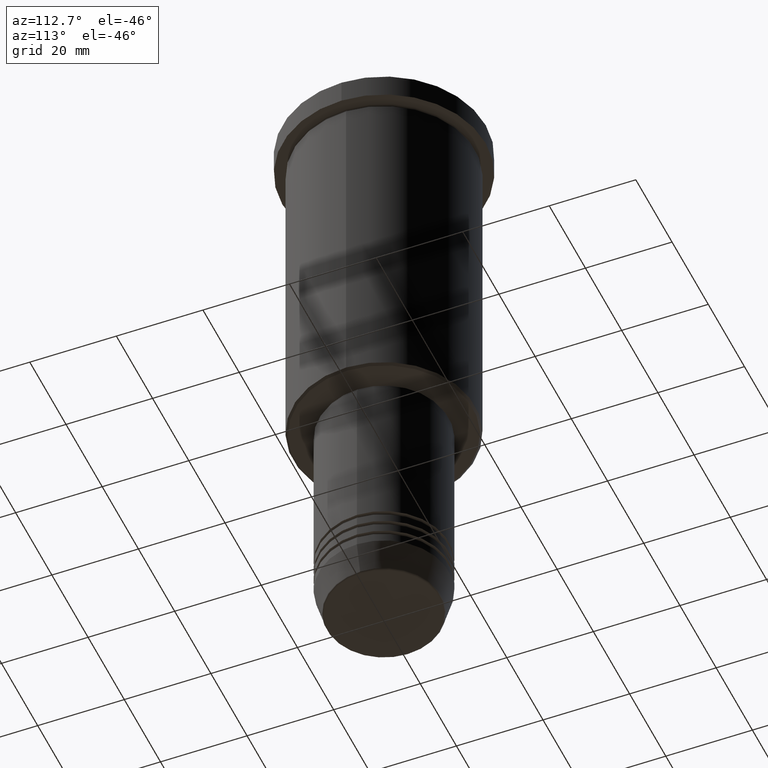
[diagram: clean part render]
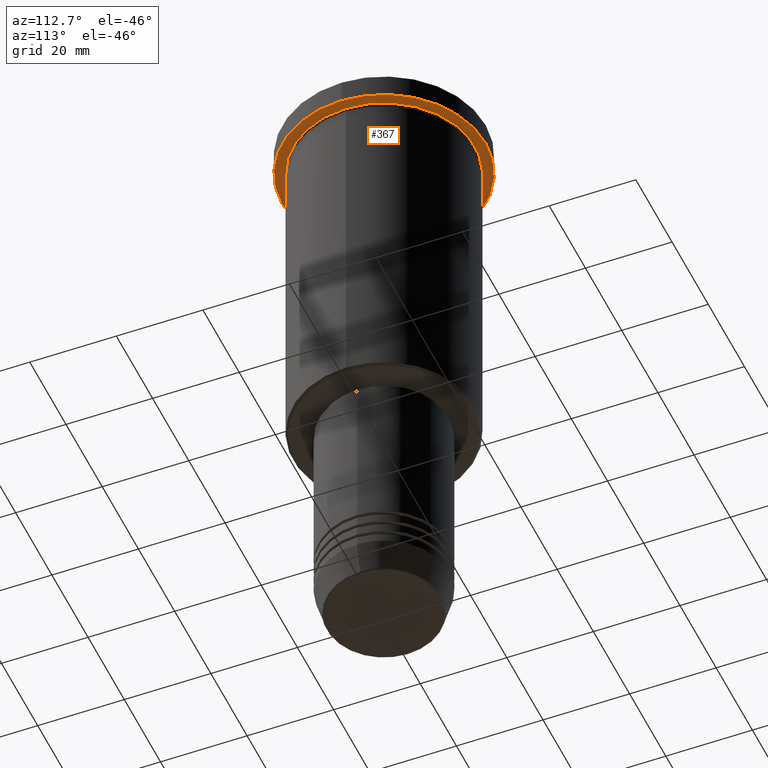
[diagram: same view with one face highlighted and labeled with its STEP entity id]
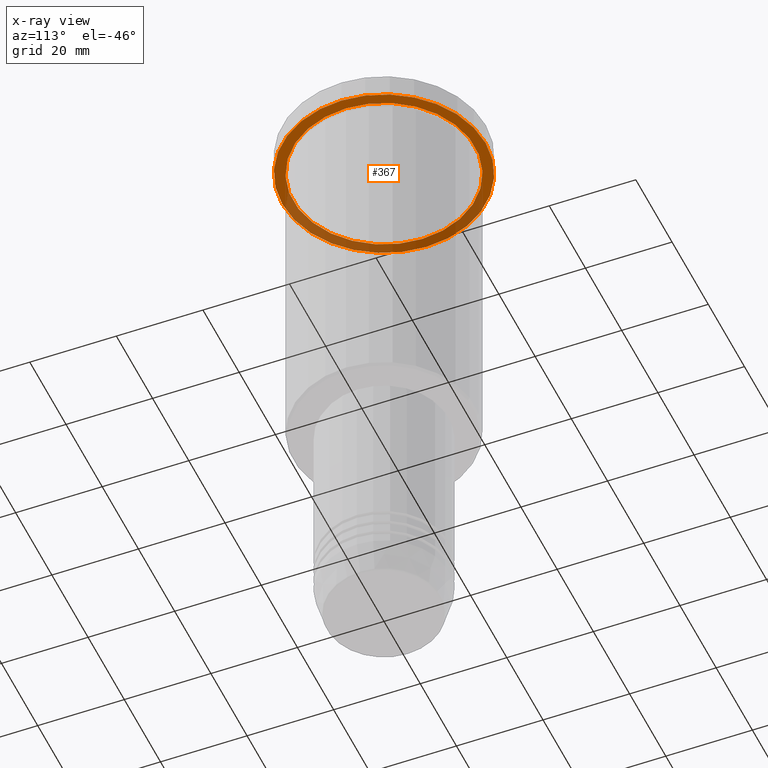
[diagram: x-ray of the same camera — body ghosted, the highlighted face saturated]
A machine part, auxiliary view. The second image highlights one B-rep face of the part: STEP entity #367.
The next image is the same camera in x-ray: the body ghosted, the highlighted face saturated — about 39% of this face is hidden behind the body in this view.
In plain terms, the highlighted planar face has unit normal (0, 0, -1).
Its self-contained STEP definition (entity closure, byte-faithful):
#27 = CARTESIAN_POINT ( 'NONE',  ( 0.000000000000000000, 0.000000000000000000, -5.999999999999994671 ) ) ;
#54 = VERTEX_POINT ( 'NONE', #271 ) ;
#61 = CIRCLE ( 'NONE', #1086, 23.50000000000000000 ) ;
#88 = DIRECTION ( 'NONE',  ( 1.000000000000000000, 0.000000000000000000, 0.000000000000000000 ) ) ;
#98 = CARTESIAN_POINT ( 'NONE',  ( 23.50000000000000000, 0.000000000000000000, -5.999999999999994671 ) ) ;
#149 = DIRECTION ( 'NONE',  ( -1.000000000000000000, 0.000000000000000000, 0.000000000000000000 ) ) ;
#228 = EDGE_CURVE ( 'NONE', #701, #983, #800, .T. ) ;
#244 = ORIENTED_EDGE ( 'NONE', *, *, #703, .F. ) ;
#271 = CARTESIAN_POINT ( 'NONE',  ( -23.50000000000000000, 2.877919977996280320E-15, -5.999999999999994671 ) ) ;
#272 = PLANE ( 'NONE',  #812 ) ;
#285 = DIRECTION ( 'NONE',  ( -0.000000000000000000, -0.000000000000000000, 1.000000000000000000 ) ) ;
#305 = FACE_BOUND ( 'NONE', #1054, .T. ) ;
#349 = DIRECTION ( 'NONE',  ( -0.000000000000000000, -0.000000000000000000, 1.000000000000000000 ) ) ;
#354 = CARTESIAN_POINT ( 'NONE',  ( -21.00000000000000000, 0.000000000000000000, -5.999999999999994671 ) ) ;
#359 = DIRECTION ( 'NONE',  ( -1.000000000000000000, 0.000000000000000000, 0.000000000000000000 ) ) ;
#367 = ADVANCED_FACE ( 'NONE', ( #305, #1089 ), #272, .T. ) ;
#395 = VERTEX_POINT ( 'NONE', #98 ) ;
#455 = AXIS2_PLACEMENT_3D ( 'NONE', #874, #1070, #359 ) ;
#480 = EDGE_LOOP ( 'NONE', ( #793, #244 ) ) ;
#486 = DIRECTION ( 'NONE',  ( -1.000000000000000000, 0.000000000000000000, -0.000000000000000000 ) ) ;
#487 = AXIS2_PLACEMENT_3D ( 'NONE', #879, #349, #88 ) ;
#536 = ORIENTED_EDGE ( 'NONE', *, *, #986, .T. ) ;
#537 = CIRCLE ( 'NONE', #455, 21.00000000000000000 ) ;
#674 = DIRECTION ( 'NONE',  ( 0.000000000000000000, 0.000000000000000000, -1.000000000000000000 ) ) ;
#701 = VERTEX_POINT ( 'NONE', #741 ) ;
#703 = EDGE_CURVE ( 'NONE', #54, #395, #61, .T. ) ;
#741 = CARTESIAN_POINT ( 'NONE',  ( 21.00000000000000000, 2.571758278209441661E-15, -5.999999999999994671 ) ) ;
#790 = ORIENTED_EDGE ( 'NONE', *, *, #228, .T. ) ;
#793 = ORIENTED_EDGE ( 'NONE', *, *, #902, .F. ) ;
#800 = CIRCLE ( 'NONE', #1156, 21.00000000000000000 ) ;
#812 = AXIS2_PLACEMENT_3D ( 'NONE', #940, #674, #486 ) ;
#874 = CARTESIAN_POINT ( 'NONE',  ( 0.000000000000000000, 0.000000000000000000, -5.999999999999994671 ) ) ;
#879 = CARTESIAN_POINT ( 'NONE',  ( 0.000000000000000000, 0.000000000000000000, -5.999999999999994671 ) ) ;
#902 = EDGE_CURVE ( 'NONE', #395, #54, #1148, .T. ) ;
#940 = CARTESIAN_POINT ( 'NONE',  ( 0.000000000000000000, 23.50000000000000000, -5.999999999999994671 ) ) ;
#959 = DIRECTION ( 'NONE',  ( -0.000000000000000000, -0.000000000000000000, 1.000000000000000000 ) ) ;
#983 = VERTEX_POINT ( 'NONE', #354 ) ;
#986 = EDGE_CURVE ( 'NONE', #983, #701, #537, .T. ) ;
#1040 = CARTESIAN_POINT ( 'NONE',  ( 0.000000000000000000, 0.000000000000000000, -5.999999999999994671 ) ) ;
#1054 = EDGE_LOOP ( 'NONE', ( #536, #790 ) ) ;
#1070 = DIRECTION ( 'NONE',  ( -0.000000000000000000, -0.000000000000000000, 1.000000000000000000 ) ) ;
#1086 = AXIS2_PLACEMENT_3D ( 'NONE', #27, #285, #1113 ) ;
#1089 = FACE_OUTER_BOUND ( 'NONE', #480, .T. ) ;
#1113 = DIRECTION ( 'NONE',  ( 1.000000000000000000, 0.000000000000000000, 0.000000000000000000 ) ) ;
#1148 = CIRCLE ( 'NONE', #487, 23.50000000000000000 ) ;
#1156 = AXIS2_PLACEMENT_3D ( 'NONE', #1040, #959, #149 ) ;